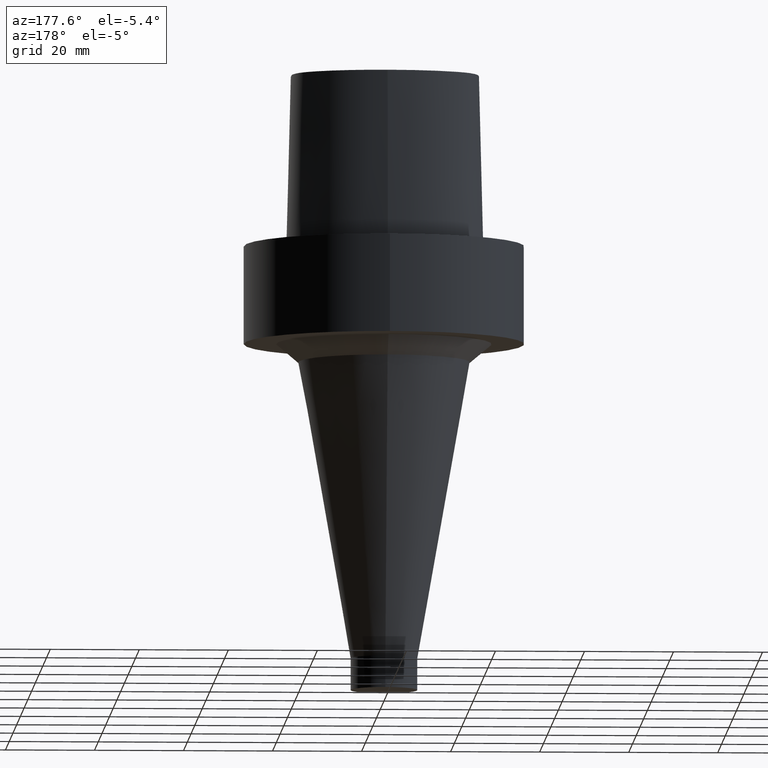
[diagram: clean part render]
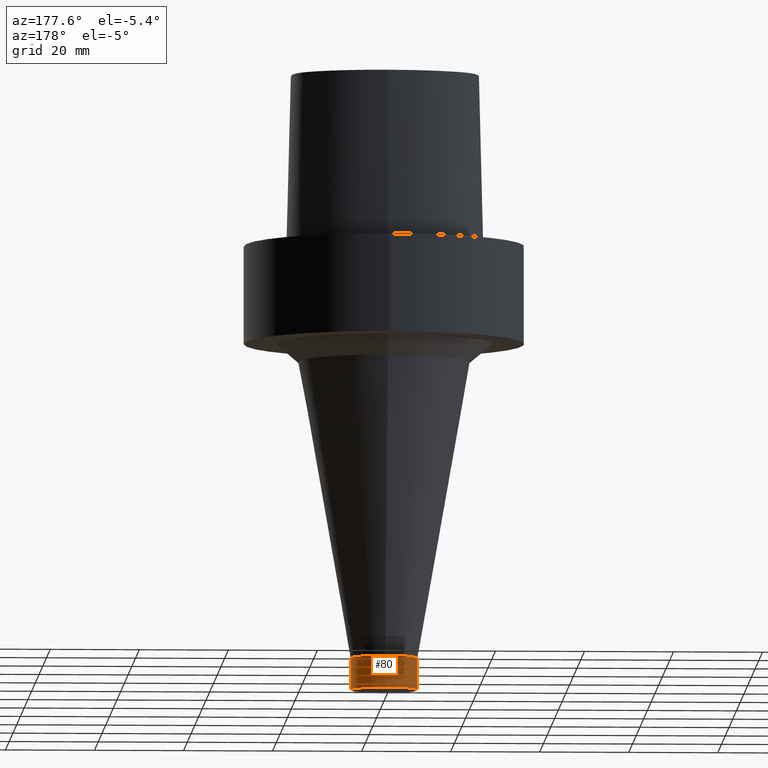
[diagram: same view with one face highlighted and labeled with its STEP entity id]
A machine part, auxiliary view. The second image highlights one B-rep face of the part: STEP entity #80.
In plain terms, the highlighted cylindrical surface (bore or boss wall) has radius 7.5 mm, axis along (0, 0, -1).
Its self-contained STEP definition (entity closure, byte-faithful):
#80=ADVANCED_FACE('',(#97,#98),#99,.T.);
#97=FACE_BOUND('',#263,.T.);
#98=FACE_BOUND('',#264,.T.);
#99=CYLINDRICAL_SURFACE('',#265,7.5);
#263=EDGE_LOOP('',(#304));
#264=EDGE_LOOP('',(#305));
#265=AXIS2_PLACEMENT_3D('',#306,#307,#308);
#304=ORIENTED_EDGE('',*,*,#345,.F.);
#305=ORIENTED_EDGE('',*,*,#344,.T.);
#306=CARTESIAN_POINT('',(5.9043223297155E-015,1.1808644659431E-014,-96.424901185));
#307=DIRECTION('',(6.12323399573677E-017,1.22464679914735E-016,-1.0));
#308=DIRECTION('',(-1.23259516440783E-032,1.0,1.22464679914735E-016));
#344=EDGE_CURVE('',#363,#363,#364,.T.);
#345=EDGE_CURVE('',#365,#365,#366,.T.);
#363=VERTEX_POINT('',#454);
#364=CIRCLE('',#455,7.5);
#365=VERTEX_POINT('',#456);
#366=CIRCLE('',#457,7.5);
#454=CARTESIAN_POINT('',(6.12323399573677E-015,7.50000000000001,-100.0));
#455=AXIS2_PLACEMENT_3D('',#472,#473,#474);
#456=CARTESIAN_POINT('',(5.68541066369424E-015,7.50000000000001,-92.84980237));
#457=AXIS2_PLACEMENT_3D('',#475,#476,#477);
#472=CARTESIAN_POINT('',(6.12323399573677E-015,1.22464679914735E-014,-100.0));
#473=DIRECTION('',(-6.12323399573677E-017,-1.22464679914735E-016,1.0));
#474=DIRECTION('',(-1.23259516440783E-032,1.0,1.22464679914735E-016));
#475=CARTESIAN_POINT('',(5.68541066369424E-015,1.13708213273885E-014,-92.84980237));
#476=DIRECTION('',(-6.12323399573677E-017,-1.22464679914735E-016,1.0));
#477=DIRECTION('',(-1.23259516440783E-032,1.0,1.22464679914735E-016));